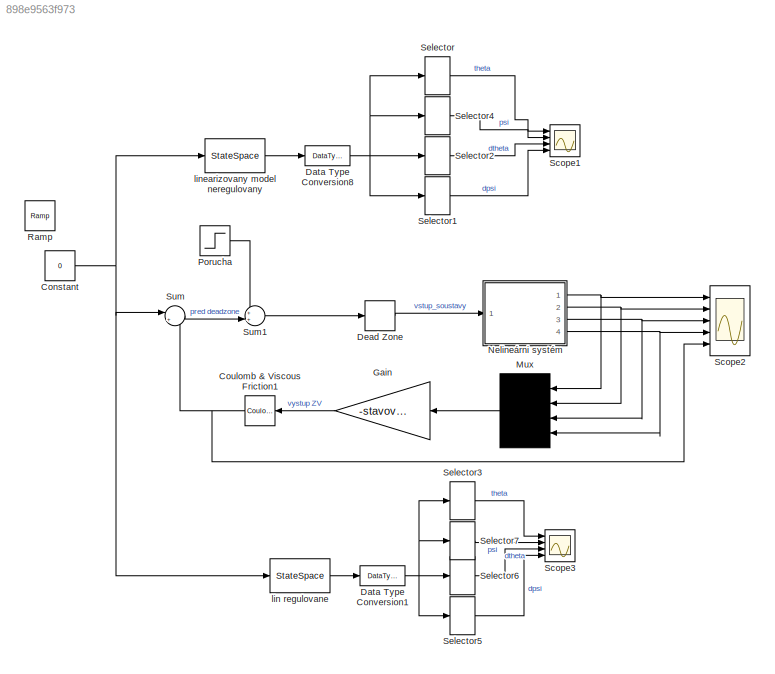
MODEL slx_898e9563f973
KIND model
CONFIG AbsTol = auto
CONFIG FixedStep = auto
CONFIG MaxStep = auto
CONFIG MinStep = auto
CONFIG RelTol = 1e-3
CONFIG SampleTimeConstraint = Unconstrained
CONFIG Solver = VariableStepAuto
CONFIG SolverMode = Auto
CONFIG SolverName = VariableStepAuto
CONFIG StartTime = 0.0
CONFIG StopTime = 16
BLOCK [Constant] Constant
  Value = 0
BLOCK [Reference] Coulomb & Viscous Friction1  REF=simulink/Discontinuities/Coulomb &
Viscous Friction
  Ports = [1, 1]
  SourceBlock = simulink/Discontinuities/Coulomb &\nViscous Friction
  SourceType = Coulombic and Viscous Friction
BLOCK [DataTypeConversion] Data Type Conversion1
  OutDataTypeStr = single
  RndMeth = Nearest
  SaturateOnIntegerOverflow = off
BLOCK [DataTypeConversion] Data Type Conversion8
  OutDataTypeStr = single
  RndMeth = Nearest
  SaturateOnIntegerOverflow = off
BLOCK [DeadZone] Dead Zone
  LowerValue = -0.22
  UpperValue = 0.3
BLOCK [Gain] Gain
  Gain = -stavova_ZV
  Multiplication = Matrix(K*u)
  OutDataTypeStr = Inherit: Inherit via internal rule
  ParamDataTypeStr = Inherit: Inherit via internal rule
  SaturateOnIntegerOverflow = off
BLOCK [Mux] Mux
  DisplayOption = signals
  Ports = [4, 1]
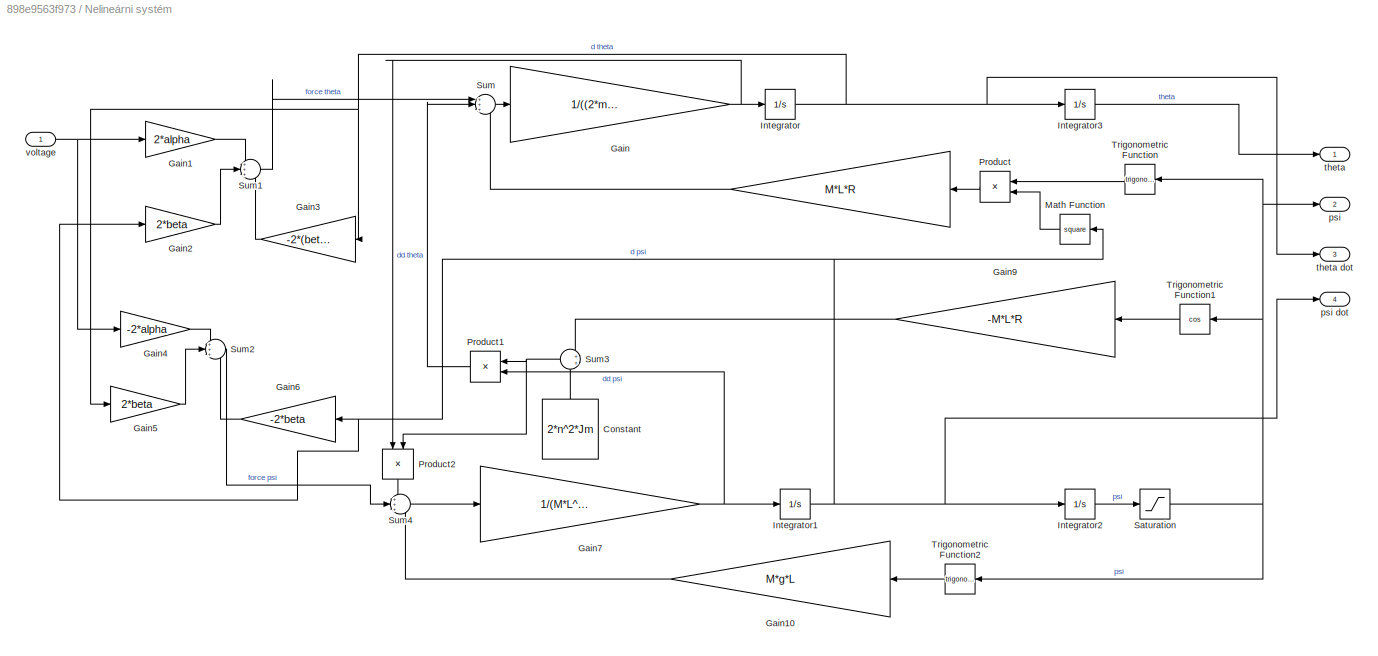
BLOCK [SubSystem] Nelineárni systém
  Ports = [1, 4]
  RequestExecContextInheritance = off
  Variant = off
BLOCK [Gain] Nelineárni systém/ 
  Gain = M*L*R
  OutDataTypeStr = Inherit: Inherit via internal rule
  ParamDataTypeStr = Inherit: Inherit via internal rule
  SaturateOnIntegerOverflow = off
BLOCK [Constant] Nelineárni systém/Constant
  Value = 2*n^2*Jm
BLOCK [Gain] Nelineárni systém/Gain
  Gain = 1/((2*m+M)*R^2 + 2*Jw + 2*n^2*Jm)
  OutDataTypeStr = Inherit: Inherit via internal rule
  ParamDataTypeStr = Inherit: Inherit via internal rule
  SaturateOnIntegerOverflow = off
BLOCK [Gain] Nelineárni systém/Gain1
  Gain = 2*alpha
  OutDataTypeStr = Inherit: Inherit via internal rule
  ParamDataTypeStr = Inherit: Inherit via internal rule
  SaturateOnIntegerOverflow = off
BLOCK [Gain] Nelineárni systém/Gain10
  Gain = M*g*L
  OutDataTypeStr = Inherit: Inherit via internal rule
  ParamDataTypeStr = Inherit: Inherit via internal rule
  SaturateOnIntegerOverflow = off
BLOCK [Gain] Nelineárni systém/Gain2
  Gain = 2*beta
  OutDataTypeStr = Inherit: Inherit via internal rule
  ParamDataTypeStr = Inherit: Inherit via internal rule
  SaturateOnIntegerOverflow = off
BLOCK [Gain] Nelineárni systém/Gain3
  Gain = -2*(beta+fw)
  OutDataTypeStr = Inherit: Inherit via internal rule
  ParamDataTypeStr = Inherit: Inherit via internal rule
  SaturateOnIntegerOverflow = off
BLOCK [Gain] Nelineárni systém/Gain4
  Gain = -2*alpha
  OutDataTypeStr = Inherit: Inherit via internal rule
  ParamDataTypeStr = Inherit: Inherit via internal rule
  SaturateOnIntegerOverflow = off
BLOCK [Gain] Nelineárni systém/Gain5
  Gain = 2*beta
  OutDataTypeStr = Inherit: Inherit via internal rule
  ParamDataTypeStr = Inherit: Inherit via internal rule
  SaturateOnIntegerOverflow = off
BLOCK [Gain] Nelineárni systém/Gain6
  Gain = -2*beta
  OutDataTypeStr = Inherit: Inherit via internal rule
  ParamDataTypeStr = Inherit: Inherit via internal rule
  SaturateOnIntegerOverflow = off
BLOCK [Gain] Nelineárni systém/Gain7
  Gain = 1/(M*L^2 + Jpsi+2*n^2*Jm)
  OutDataTypeStr = Inherit: Inherit via internal rule
  ParamDataTypeStr = Inherit: Inherit via internal rule
  SaturateOnIntegerOverflow = off
BLOCK [Gain] Nelineárni systém/Gain9
  Gain = -M*L*R
  OutDataTypeStr = Inherit: Inherit via internal rule
  ParamDataTypeStr = Inherit: Inherit via internal rule
  SaturateOnIntegerOverflow = off
BLOCK [Integrator] Nelineárni systém/Integrator
  InitialCondition = initial_thetadot
  Ports = [1, 1]
BLOCK [Integrator] Nelineárni systém/Integrator1
  InitialCondition = initial_psidot
  Ports = [1, 1]
BLOCK [Integrator] Nelineárni systém/Integrator2
  InitialCondition = initial_psi
  Ports = [1, 1]
BLOCK [Integrator] Nelineárni systém/Integrator3
  InitialCondition = initial_theta
  Ports = [1, 1]
BLOCK [Math] Nelineárni systém/Math Function
  Operator = square
  Ports = [1, 1]
BLOCK [Product] Nelineárni systém/Product
  InputSameDT = off
  OutDataTypeStr = Inherit: Inherit via internal rule
  Ports = [2, 1]
  RndMeth = Floor
  SaturateOnIntegerOverflow = off
BLOCK [Product] Nelineárni systém/Product1
  InputSameDT = off
  OutDataTypeStr = Inherit: Inherit via internal rule
  Ports = [2, 1]
  RndMeth = Floor
  SaturateOnIntegerOverflow = off
BLOCK [Product] Nelineárni systém/Product2
  InputSameDT = off
  OutDataTypeStr = Inherit: Inherit via internal rule
  Ports = [2, 1]
  RndMeth = Floor
  SaturateOnIntegerOverflow = off
BLOCK [Saturate] Nelineárni systém/Saturation
  InputPortMap = u0
  LowerLimit = -pi/2
  Ports = [1, 1]
  UpperLimit = pi/2
BLOCK [Sum] Nelineárni systém/Sum
  IconShape = round
  InputSameDT = off
  Inputs = +++
  OutDataTypeStr = Inherit: Inherit via internal rule
  Ports = [3, 1]
  SaturateOnIntegerOverflow = off
BLOCK [Sum] Nelineárni systém/Sum1
  IconShape = round
  InputSameDT = off
  Inputs = +++
  OutDataTypeStr = Inherit: Inherit via internal rule
  Ports = [3, 1]
  SaturateOnIntegerOverflow = off
BLOCK [Sum] Nelineárni systém/Sum2
  IconShape = round
  InputSameDT = off
  Inputs = +++
  OutDataTypeStr = Inherit: Inherit via internal rule
  Ports = [3, 1]
  SaturateOnIntegerOverflow = off
BLOCK [Sum] Nelineárni systém/Sum3
  IconShape = round
  InputSameDT = off
  OutDataTypeStr = Inherit: Inherit via internal rule
  Ports = [2, 1]
  SaturateOnIntegerOverflow = off
BLOCK [Sum] Nelineárni systém/Sum4
  IconShape = round
  InputSameDT = off
  Inputs = +++
  OutDataTypeStr = Inherit: Inherit via internal rule
  Ports = [3, 1]
  SaturateOnIntegerOverflow = off
BLOCK [Trigonometry] Nelineárni systém/Trigonometric Function
  Ports = [1, 1]
BLOCK [Trigonometry] Nelineárni systém/Trigonometric Function1
  Operator = cos
  Ports = [1, 1]
BLOCK [Trigonometry] Nelineárni systém/Trigonometric Function2
  Ports = [1, 1]
BLOCK [Outport] Nelineárni systém/psi
  IconDisplay = Port number
  Port = 2
BLOCK [Outport] Nelineárni systém/psi dot
  IconDisplay = Port number
  Port = 4
BLOCK [Outport] Nelineárni systém/theta
  IconDisplay = Port number
BLOCK [Outport] Nelineárni systém/theta dot
  IconDisplay = Port number
  Port = 3
BLOCK [Inport] Nelineárni systém/voltage
  IconDisplay = Port number
BLOCK [Step] Porucha
  SampleTime = 0
  Time = 200
BLOCK [Reference] Ramp  REF=simulink/Sources/Ramp
  Ports = [0, 1]
  SourceBlock = simulink/Sources/Ramp
  SourceType = Ramp
BLOCK [Scope] Scope1
  NumInputPorts = 4
  Ports = [4]
  ScopeSpecificationString = Simulink.scopes.TimeScopeBlockCfg('CurrentConfiguration', extmgr.ConfigurationSet(extmgr.Configuration('Core','General UI',true),extmgr.Configuration('Core','Source UI',true),extmgr.Configuration('Sources','WiredSimulink',true,'DataLoggingVariableName','nestabilni_lin_system_data','DataLogging',true,'DataLoggingSaveFormat','StructureWithTime'),extmgr.Configuration('Visuals','Time Domain',true,'Ser...<+1524ch>
BLOCK [Scope] Scope2
  NumInputPorts = 5
  Ports = [5]
  ScopeSpecificationString = Simulink.scopes.TimeScopeBlockCfg('CurrentConfiguration', extmgr.ConfigurationSet(extmgr.Configuration('Core','General UI',true),extmgr.Configuration('Core','Source UI',true),extmgr.Configuration('Sources','WiredSimulink',true,'DataLoggingVariableName','nelin_system_data','DataLogging',true,'DataLoggingSaveFormat','StructureWithTime'),extmgr.Configuration('Visuals','Time Domain',true,'SerializedDi...<+1637ch>
BLOCK [Scope] Scope3
  NumInputPorts = 4
  Ports = [4]
  ScopeSpecificationString = Simulink.scopes.TimeScopeBlockCfg('CurrentConfiguration', extmgr.ConfigurationSet(extmgr.Configuration('Core','General UI',true),extmgr.Configuration('Core','Source UI',true),extmgr.Configuration('Sources','WiredSimulink',true,'DataLoggingVariableName','lin_system_data','DataLogging',true,'DataLoggingSaveFormat','StructureWithTime'),extmgr.Configuration('Visuals','Time Domain',true,'SerializedDisp...<+1512ch>
BLOCK [Selector] Selector
  IndexOptions = Index vector (dialog)
  Indices = 1
  InputPortWidth = 4
  OutputSizes = 1
  Ports = [1, 1]
BLOCK [Selector] Selector1
  IndexOptions = Index vector (dialog)
  Indices = 4
  InputPortWidth = 4
  OutputSizes = 1
  Ports = [1, 1]
BLOCK [Selector] Selector2
  IndexOptions = Index vector (dialog)
  Indices = 3
  InputPortWidth = 4
  OutputSizes = 1
  Ports = [1, 1]
BLOCK [Selector] Selector3
  IndexOptions = Index vector (dialog)
  Indices = 1
  InputPortWidth = 4
  OutputSizes = 1
  Ports = [1, 1]
BLOCK [Selector] Selector4
  IndexOptions = Index vector (dialog)
  Indices = 2
  InputPortWidth = 4
  OutputSizes = 1
  Ports = [1, 1]
BLOCK [Selector] Selector5
  IndexOptions = Index vector (dialog)
  Indices = 4
  InputPortWidth = 4
  OutputSizes = 1
  Ports = [1, 1]
BLOCK [Selector] Selector6
  IndexOptions = Index vector (dialog)
  Indices = 3
  InputPortWidth = 4
  OutputSizes = 1
  Ports = [1, 1]
BLOCK [Selector] Selector7
  IndexOptions = Index vector (dialog)
  Indices = 2
  InputPortWidth = 4
  OutputSizes = 1
  Ports = [1, 1]
BLOCK [Sum] Sum
  IconShape = round
  InputSameDT = off
  Inputs = |++
  OutDataTypeStr = Inherit: Inherit via internal rule
  Ports = [2, 1]
  SaturateOnIntegerOverflow = off
BLOCK [Sum] Sum1
  IconShape = round
  InputSameDT = off
  Inputs = ++|
  OutDataTypeStr = Inherit: Inherit via internal rule
  Ports = [2, 1]
  SaturateOnIntegerOverflow = off
BLOCK [StateSpace] lin regulovane
  A = maticeA - maticeB*stavova_ZV
  B = maticeB
  C = eye(4)
  D = zeros(4,1)
  Ports = [1, 1]
  X0 = simulation_initial_conditions
BLOCK [StateSpace] linearizovany model neregulovany
  A = maticeA
  B = maticeB
  C = eye(4)
  D = zeros(4,1)
  Ports = [1, 1]
  X0 = zeros(4,1)
NET Constant:1 -> Sum:1, lin regulovane:1, linearizovany model neregulovany:1
NET Coulomb & Viscous Friction1:1 -> Scope2:5, Sum:2
NET Data Type Conversion1:1 -> Selector3:1, Selector5:1, Selector6:1, Selector7:1
NET Data Type Conversion8:1 -> Selector1:1, Selector2:1, Selector4:1, Selector:1
LINE Dead Zone:1 -> Nelineárni systém:1
LINE Gain:1 -> Coulomb & Viscous Friction1:1
LINE Mux:1 -> Gain:1
LINE Nelineárni systém/ :1 -> Nelineárni systém/Sum:3
LINE Nelineárni systém/Constant:1 -> Nelineárni systém/Sum3:2
LINE Nelineárni systém/Gain10:1 -> Nelineárni systém/Sum4:3
LINE Nelineárni systém/Gain1:1 -> Nelineárni systém/Sum1:1
LINE Nelineárni systém/Gain2:1 -> Nelineárni systém/Sum1:2
LINE Nelineárni systém/Gain3:1 -> Nelineárni systém/Sum1:3
LINE Nelineárni systém/Gain4:1 -> Nelineárni systém/Sum2:1
LINE Nelineárni systém/Gain5:1 -> Nelineárni systém/Sum2:2
LINE Nelineárni systém/Gain6:1 -> Nelineárni systém/Sum2:3
NET Nelineárni systém/Gain7:1 -> Nelineárni systém/Integrator1:1, Nelineárni systém/Product1:2
LINE Nelineárni systém/Gain9:1 -> Nelineárni systém/Sum3:1
NET Nelineárni systém/Gain:1 -> Nelineárni systém/Integrator:1, Nelineárni systém/Product2:1
NET Nelineárni systém/Integrator1:1 -> Nelineárni systém/Gain2:1, Nelineárni systém/Gain6:1, Nelineárni systém/Integrator2:1, Nelineárni systém/Math Function:1, Nelineárni systém/psi dot:1
LINE Nelineárni systém/Integrator2:1 -> Nelineárni systém/Saturation:1
LINE Nelineárni systém/Integrator3:1 -> Nelineárni systém/theta:1
NET Nelineárni systém/Integrator:1 -> Nelineárni systém/Gain3:1, Nelineárni systém/Gain5:1, Nelineárni systém/Integrator3:1, Nelineárni systém/theta dot:1
LINE Nelineárni systém/Math Function:1 -> Nelineárni systém/Product:2
LINE Nelineárni systém/Product1:1 -> Nelineárni systém/Sum:2
LINE Nelineárni systém/Product2:1 -> Nelineárni systém/Sum4:1
LINE Nelineárni systém/Product:1 -> Nelineárni systém/ :1
NET Nelineárni systém/Saturation:1 -> Nelineárni systém/Trigonometric Function1:1, Nelineárni systém/Trigonometric Function2:1, Nelineárni systém/Trigonometric Function:1, Nelineárni systém/psi:1
LINE Nelineárni systém/Sum1:1 -> Nelineárni systém/Sum:1
LINE Nelineárni systém/Sum2:1 -> Nelineárni systém/Sum4:2
NET Nelineárni systém/Sum3:1 -> Nelineárni systém/Product1:1, Nelineárni systém/Product2:2
LINE Nelineárni systém/Sum4:1 -> Nelineárni systém/Gain7:1
LINE Nelineárni systém/Sum:1 -> Nelineárni systém/Gain:1
LINE Nelineárni systém/Trigonometric Function1:1 -> Nelineárni systém/Gain9:1
LINE Nelineárni systém/Trigonometric Function2:1 -> Nelineárni systém/Gain10:1
LINE Nelineárni systém/Trigonometric Function:1 -> Nelineárni systém/Product:1
NET Nelineárni systém/voltage:1 -> Nelineárni systém/Gain1:1, Nelineárni systém/Gain4:1
NET Nelineárni systém:1 -> Mux:1, Scope2:1
NET Nelineárni systém:2 -> Mux:2, Scope2:2
NET Nelineárni systém:3 -> Mux:3, Scope2:3
NET Nelineárni systém:4 -> Mux:4, Scope2:4
LINE Porucha:1 -> Sum1:1
LINE Selector1:1 -> Scope1:4
LINE Selector2:1 -> Scope1:3
LINE Selector3:1 -> Scope3:1
LINE Selector4:1 -> Scope1:2
LINE Selector5:1 -> Scope3:4
LINE Selector6:1 -> Scope3:3
LINE Selector7:1 -> Scope3:2
LINE Selector:1 -> Scope1:1
LINE Sum1:1 -> Dead Zone:1
LINE Sum:1 -> Sum1:2
LINE lin regulovane:1 -> Data Type Conversion1:1
LINE linearizovany model neregulovany:1 -> Data Type Conversion8:1
note: NET lines group one-source signal fan-out (src -> all destinations, sorted); 1:1 wires keep LINE
